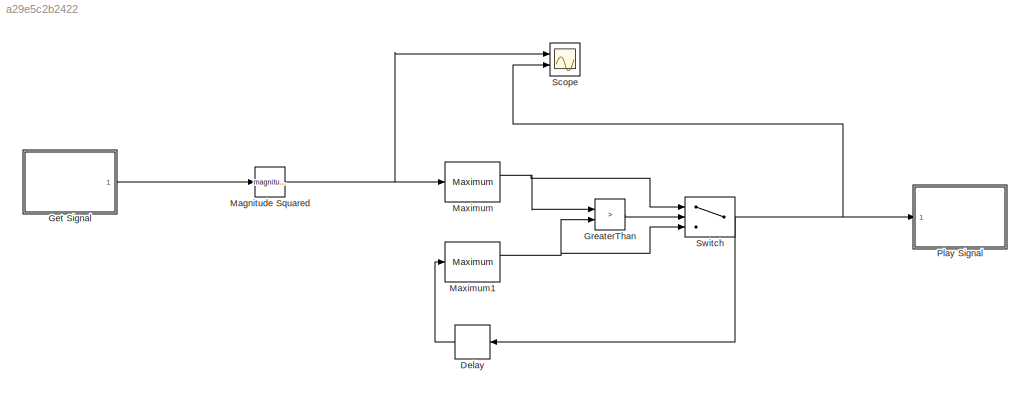
MODEL slx_a29e5c2b2422
KIND model
CONFIG AbsTol = auto
CONFIG EnableMultiTasking = off
CONFIG FixedStep = auto
CONFIG InitFcn = W_bits = 32;\nF_bits = 16;\n\np = 1;\nq = 1;\n\nfilename ='<userpath>\Desktop\SoC-FPGAs-II\Lab 3\green_day.wav';\n\n[y,Fs] = audioread(filename);\n\ninput_signal = resample(y,p,q);\n\nt = zeros(length(input_signal),1);\n\nfor i = 1:length(input_signal)\n t(i) = 1/Fs * i*q;\nend\n\ninput_signal = [t input_signal];
CONFIG MaxStep = auto
CONFIG MinStep = auto
CONFIG RelTol = 1e-3
CONFIG SampleTimeConstraint = Unconstrained
CONFIG Solver = VariableStepAuto
CONFIG SolverName = VariableStepAuto
CONFIG StartTime = 0.0
CONFIG StopFcn = output_signal = [out.tout out.output_signal];\n\nsound(output_signal,Fs);
CONFIG StopTime = 5
BLOCK [Delay] Delay
  DelayLength = 1
  InputPortMap = u0
  Ports = [1, 1]
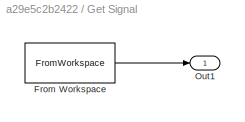
BLOCK [SubSystem] Get Signal
  Ports = [0, 1]
  RequestExecContextInheritance = off
BLOCK [FromWorkspace] Get Signal/From Workspace
  OutDataTypeStr = double
  SampleTime = 1/Fs*q*4
  VariableName = input_signal
  ZeroCross = on
BLOCK [Outport] Get Signal/Out1
  IconDisplay = Port number
BLOCK [RelationalOperator] GreaterThan
  InputSameDT = off
  Operator = >
  OutDataTypeStr = boolean
  Ports = [2, 1]
  RndMeth = Simplest
BLOCK [Math] Magnitude Squared
  Operator = magnitude^2
  Ports = [1, 1]
  SignedPower = off
BLOCK [Reference] Maximum  REF=dspstat3/Maximum
  Ports = [1, 2]
  SourceBlock = dspstat3/Maximum
  SourceProductBaseCode = DS
  SourceProductName = DSP System Toolbox
  SourceType = Maximum
  UserDataPersistent = on
BLOCK [Reference] Maximum1  REF=dspstat3/Maximum
  Ports = [1, 2]
  SourceBlock = dspstat3/Maximum
  SourceProductBaseCode = DS
  SourceProductName = DSP System Toolbox
  SourceType = Maximum
  UserDataPersistent = on
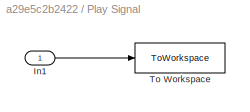
BLOCK [SubSystem] Play Signal
  Ports = [1]
  RequestExecContextInheritance = off
BLOCK [Inport] Play Signal/In1
  IconDisplay = Port number
BLOCK [ToWorkspace] Play Signal/To Workspace
  FixptAsFi = on
  MaxDataPoints = inf
  Ports = [1]
  SampleTime = 1/Fs
  Save2DSignal = 2-D array (concatenate along first dimension)
  VariableName = output_signal
BLOCK [Scope] Scope
  Floating = off
  NumInputPorts = 2
  Ports = [2]
  ScopeSpecificationString = Simulink.scopes.TimeScopeBlockCfg('CurrentConfiguration', extmgr.ConfigurationSet(extmgr.Configuration('Core','General UI',true),extmgr.Configuration('Core','Source UI',true),extmgr.Configuration('Sources','WiredSimulink',true),extmgr.Configuration('Visuals','Time Domain',true,'SerializedDisplays',{struct('MinYLimReal','-0.12499','MaxYLimReal','1.12493','YLabelReal','','MinYLimMag','0.00000','MaxY...<+1401ch>
BLOCK [Switch] Switch
  Criteria = u2 > Threshold
  InputSameDT = off
  SaturateOnIntegerOverflow = off
LINE Delay:1 -> Maximum1:1
LINE Get Signal/From Workspace:1 -> Get Signal/Out1:1
LINE Get Signal:1 -> Magnitude Squared:1
LINE GreaterThan:1 -> Switch:2
NET Magnitude Squared:1 -> Maximum:1, Scope:1
NET Maximum1:1 -> GreaterThan:2, Switch:3
NET Maximum:1 -> GreaterThan:1, Switch:1
LINE Play Signal/In1:1 -> Play Signal/To Workspace:1
NET Switch:1 -> Delay:1, Play Signal:1, Scope:2
note: NET lines group one-source signal fan-out (src -> all destinations, sorted); 1:1 wires keep LINE
